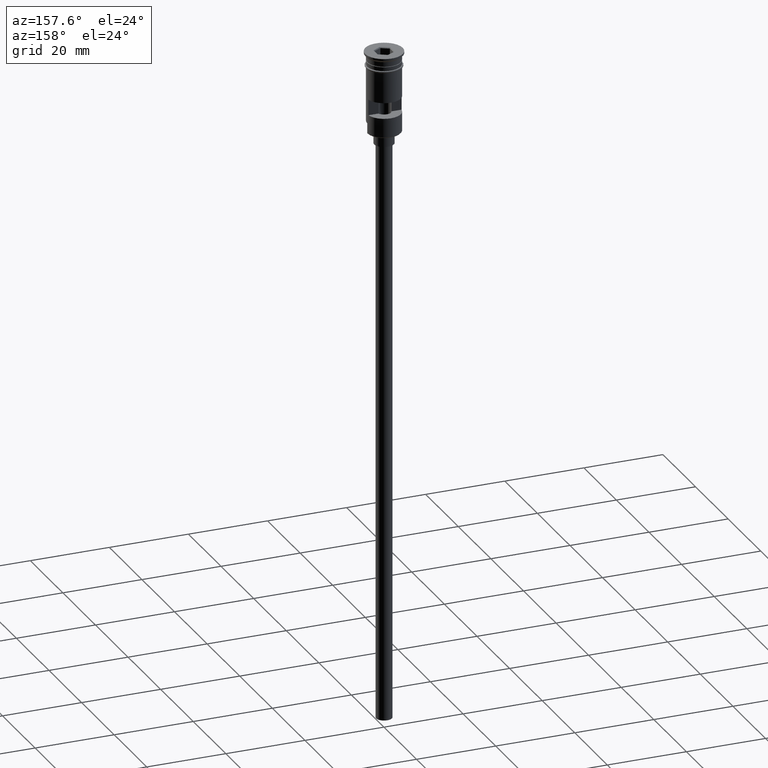
[diagram: clean part render]
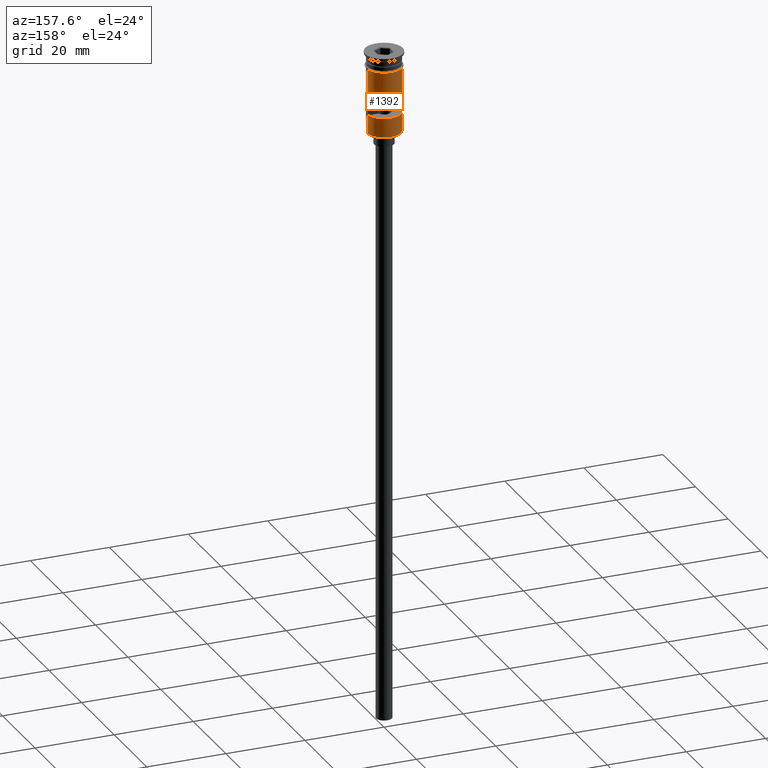
[diagram: same view with one face highlighted and labeled with its STEP entity id]
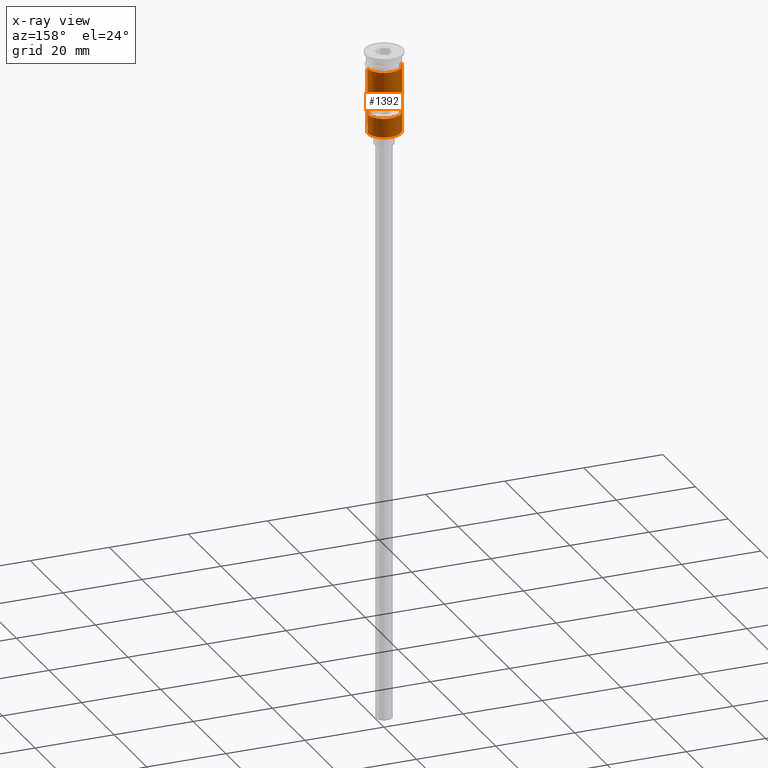
[diagram: x-ray of the same camera — body ghosted, the highlighted face saturated]
A machine part, auxiliary view. The second image highlights one B-rep face of the part: STEP entity #1392.
The next image is the same camera in x-ray: the body ghosted, the highlighted face saturated — about 0% of this face is hidden behind the body in this view.
In plain terms, the highlighted cylindrical surface (edge-blend (fillet) strip) has radius 4.25 mm, axis along (-0, -0, 1).
Its self-contained STEP definition (entity closure, byte-faithful):
#25 = DIRECTION ( 'NONE',  ( -0.000000000000000000, -0.000000000000000000, 1.000000000000000000 ) ) ;
#30 = VECTOR ( 'NONE', #145, 1000.000000000000000 ) ;
#34 = AXIS2_PLACEMENT_3D ( 'NONE', #114, #1105, #1604 ) ;
#57 = ORIENTED_EDGE ( 'NONE', *, *, #1426, .F. ) ;
#98 = VERTEX_POINT ( 'NONE', #1256 ) ;
#106 = ORIENTED_EDGE ( 'NONE', *, *, #771, .F. ) ;
#114 = CARTESIAN_POINT ( 'NONE',  ( 0.000000000000000000, 0.000000000000000000, -15.50000000000000000 ) ) ;
#141 = CYLINDRICAL_SURFACE ( 'NONE', #965, 4.249999999999996447 ) ;
#145 = DIRECTION ( 'NONE',  ( -0.000000000000000000, -0.000000000000000000, 1.000000000000000000 ) ) ;
#182 = CIRCLE ( 'NONE', #1324, 4.249999999999999112 ) ;
#194 = VERTEX_POINT ( 'NONE', #1394 ) ;
#280 = DIRECTION ( 'NONE',  ( 1.000000000000000000, 0.000000000000000000, 0.000000000000000000 ) ) ;
#285 = ORIENTED_EDGE ( 'NONE', *, *, #1094, .F. ) ;
#289 = CARTESIAN_POINT ( 'NONE',  ( -4.249999999999994671, 0.000000000000000000, -17.80000000000000071 ) ) ;
#296 = VERTEX_POINT ( 'NONE', #1567 ) ;
#313 = CIRCLE ( 'NONE', #388, 4.249999999999996447 ) ;
#347 = DIRECTION ( 'NONE',  ( -0.000000000000000000, 0.000000000000000000, -1.000000000000000000 ) ) ;
#364 = CARTESIAN_POINT ( 'NONE',  ( 4.249999999999999112, 0.000000000000000000, -3.799999999999998934 ) ) ;
#373 = EDGE_CURVE ( 'NONE', #296, #1429, #313, .T. ) ;
#388 = AXIS2_PLACEMENT_3D ( 'NONE', #1453, #347, #459 ) ;
#421 = EDGE_CURVE ( 'NONE', #625, #1189, #1356, .T. ) ;
#459 = DIRECTION ( 'NONE',  ( 1.000000000000000000, 0.000000000000000000, 0.000000000000000000 ) ) ;
#478 = CIRCLE ( 'NONE', #504, 4.249999999999996447 ) ;
#504 = AXIS2_PLACEMENT_3D ( 'NONE', #1454, #1440, #1434 ) ;
#515 = EDGE_CURVE ( 'NONE', #644, #720, #1008, .T. ) ;
#523 = DIRECTION ( 'NONE',  ( 1.000000000000000000, 0.000000000000000000, 0.000000000000000000 ) ) ;
#537 = DIRECTION ( 'NONE',  ( -0.000000000000000000, -0.000000000000000000, 1.000000000000000000 ) ) ;
#545 = EDGE_CURVE ( 'NONE', #1038, #296, #756, .T. ) ;
#564 = EDGE_CURVE ( 'NONE', #194, #625, #1525, .T. ) ;
#600 = ORIENTED_EDGE ( 'NONE', *, *, #373, .F. ) ;
#602 = DIRECTION ( 'NONE',  ( 0.000000000000000000, 0.000000000000000000, -1.000000000000000000 ) ) ;
#625 = VERTEX_POINT ( 'NONE', #789 ) ;
#628 = DIRECTION ( 'NONE',  ( -0.000000000000000000, -0.000000000000000000, 1.000000000000000000 ) ) ;
#644 = VERTEX_POINT ( 'NONE', #289 ) ;
#645 = ORIENTED_EDGE ( 'NONE', *, *, #515, .T. ) ;
#692 = EDGE_CURVE ( 'NONE', #98, #644, #1417, .T. ) ;
#704 = CARTESIAN_POINT ( 'NONE',  ( 0.000000000000000000, 0.000000000000000000, -3.799999999999998934 ) ) ;
#720 = VERTEX_POINT ( 'NONE', #1148 ) ;
#756 = LINE ( 'NONE', #1102, #1449 ) ;
#770 = FACE_BOUND ( 'NONE', #1288, .T. ) ;
#771 = EDGE_CURVE ( 'NONE', #1429, #869, #809, .T. ) ;
#789 = CARTESIAN_POINT ( 'NONE',  ( 4.249999999999996447, 5.204748896376247741E-16, -17.80000000000000071 ) ) ;
#809 = LINE ( 'NONE', #1201, #1555 ) ;
#835 = VECTOR ( 'NONE', #628, 1000.000000000000000 ) ;
#837 = VECTOR ( 'NONE', #890, 1000.000000000000000 ) ;
#862 = VECTOR ( 'NONE', #537, 1000.000000000000000 ) ;
#868 = CARTESIAN_POINT ( 'NONE',  ( 4.207433897282282231, 0.5999999999999996447, -11.50000000000000000 ) ) ;
#869 = VERTEX_POINT ( 'NONE', #1459 ) ;
#890 = DIRECTION ( 'NONE',  ( -0.000000000000000000, -0.000000000000000000, 1.000000000000000000 ) ) ;
#965 = AXIS2_PLACEMENT_3D ( 'NONE', #1512, #25, #523 ) ;
#967 = ORIENTED_EDGE ( 'NONE', *, *, #692, .T. ) ;
#984 = DIRECTION ( 'NONE',  ( -0.000000000000000000, -0.000000000000000000, 1.000000000000000000 ) ) ;
#993 = CARTESIAN_POINT ( 'NONE',  ( -4.249999999999996447, 5.204748896376247741E-16, 0.000000000000000000 ) ) ;
#1008 = LINE ( 'NONE', #993, #837 ) ;
#1024 = CARTESIAN_POINT ( 'NONE',  ( -4.207433897282282231, 0.5999999999999996447, -15.50000000000000000 ) ) ;
#1038 = VERTEX_POINT ( 'NONE', #1024 ) ;
#1075 = ORIENTED_EDGE ( 'NONE', *, *, #421, .F. ) ;
#1094 = EDGE_CURVE ( 'NONE', #1189, #720, #182, .T. ) ;
#1100 = ORIENTED_EDGE ( 'NONE', *, *, #1595, .T. ) ;
#1102 = CARTESIAN_POINT ( 'NONE',  ( -4.207433897282282231, 0.5999999999999996447, 0.000000000000000000 ) ) ;
#1105 = DIRECTION ( 'NONE',  ( 0.000000000000000000, 0.000000000000000000, 1.000000000000000000 ) ) ;
#1120 = EDGE_LOOP ( 'NONE', ( #967, #645, #285, #1075, #1289, #1100 ) ) ;
#1148 = CARTESIAN_POINT ( 'NONE',  ( -4.249999999999999112, 5.204748896376250699E-16, -3.799999999999998934 ) ) ;
#1154 = CARTESIAN_POINT ( 'NONE',  ( 4.249999999999994671, 5.204748896376245769E-16, -20.49999999999999645 ) ) ;
#1189 = VERTEX_POINT ( 'NONE', #364 ) ;
#1201 = CARTESIAN_POINT ( 'NONE',  ( 4.207433897282282231, 0.5999999999999996447, 0.000000000000000000 ) ) ;
#1212 = ORIENTED_EDGE ( 'NONE', *, *, #545, .F. ) ;
#1256 = CARTESIAN_POINT ( 'NONE',  ( -4.249999999999994671, 0.000000000000000000, -20.30000000000000426 ) ) ;
#1257 = FACE_OUTER_BOUND ( 'NONE', #1120, .T. ) ;
#1262 = CARTESIAN_POINT ( 'NONE',  ( -4.249999999999994671, 0.000000000000000000, -20.49999999999999645 ) ) ;
#1288 = EDGE_LOOP ( 'NONE', ( #106, #600, #1212, #57 ) ) ;
#1289 = ORIENTED_EDGE ( 'NONE', *, *, #564, .F. ) ;
#1324 = AXIS2_PLACEMENT_3D ( 'NONE', #704, #1402, #280 ) ;
#1356 = LINE ( 'NONE', #1501, #835 ) ;
#1392 = ADVANCED_FACE ( 'NONE', ( #770, #1257 ), #141, .T. ) ;
#1394 = CARTESIAN_POINT ( 'NONE',  ( 4.249999999999994671, 5.204748896376245769E-16, -20.30000000000000426 ) ) ;
#1402 = DIRECTION ( 'NONE',  ( -0.000000000000000000, -0.000000000000000000, 1.000000000000000000 ) ) ;
#1417 = LINE ( 'NONE', #1262, #30 ) ;
#1426 = EDGE_CURVE ( 'NONE', #869, #1038, #1584, .T. ) ;
#1429 = VERTEX_POINT ( 'NONE', #868 ) ;
#1434 = DIRECTION ( 'NONE',  ( -1.000000000000000000, 0.000000000000000000, 0.000000000000000000 ) ) ;
#1440 = DIRECTION ( 'NONE',  ( 0.000000000000000000, 0.000000000000000000, 1.000000000000000000 ) ) ;
#1449 = VECTOR ( 'NONE', #984, 1000.000000000000000 ) ;
#1453 = CARTESIAN_POINT ( 'NONE',  ( 0.000000000000000000, 0.000000000000000000, -11.50000000000000000 ) ) ;
#1454 = CARTESIAN_POINT ( 'NONE',  ( 0.000000000000000000, 0.000000000000000000, -20.30000000000000426 ) ) ;
#1459 = CARTESIAN_POINT ( 'NONE',  ( 4.207433897282282231, 0.5999999999999996447, -15.50000000000000000 ) ) ;
#1501 = CARTESIAN_POINT ( 'NONE',  ( 4.249999999999996447, 0.000000000000000000, 0.000000000000000000 ) ) ;
#1512 = CARTESIAN_POINT ( 'NONE',  ( 0.000000000000000000, 0.000000000000000000, 0.000000000000000000 ) ) ;
#1525 = LINE ( 'NONE', #1154, #862 ) ;
#1555 = VECTOR ( 'NONE', #602, 1000.000000000000000 ) ;
#1567 = CARTESIAN_POINT ( 'NONE',  ( -4.207433897282282231, 0.5999999999999996447, -11.50000000000000000 ) ) ;
#1584 = CIRCLE ( 'NONE', #34, 4.249999999999996447 ) ;
#1595 = EDGE_CURVE ( 'NONE', #194, #98, #478, .T. ) ;
#1604 = DIRECTION ( 'NONE',  ( -1.000000000000000000, 0.000000000000000000, 0.000000000000000000 ) ) ;